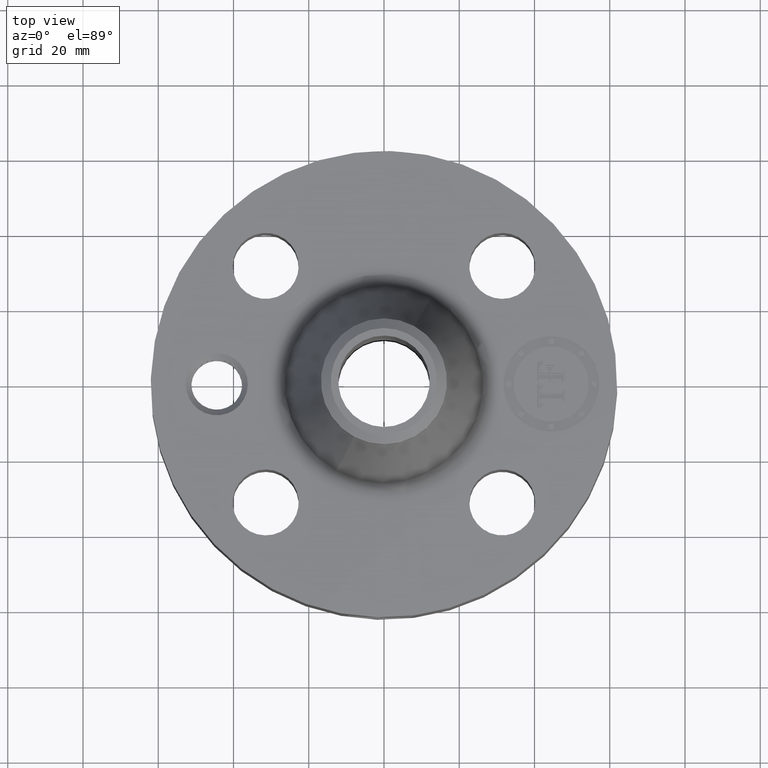
[diagram: clean part render]
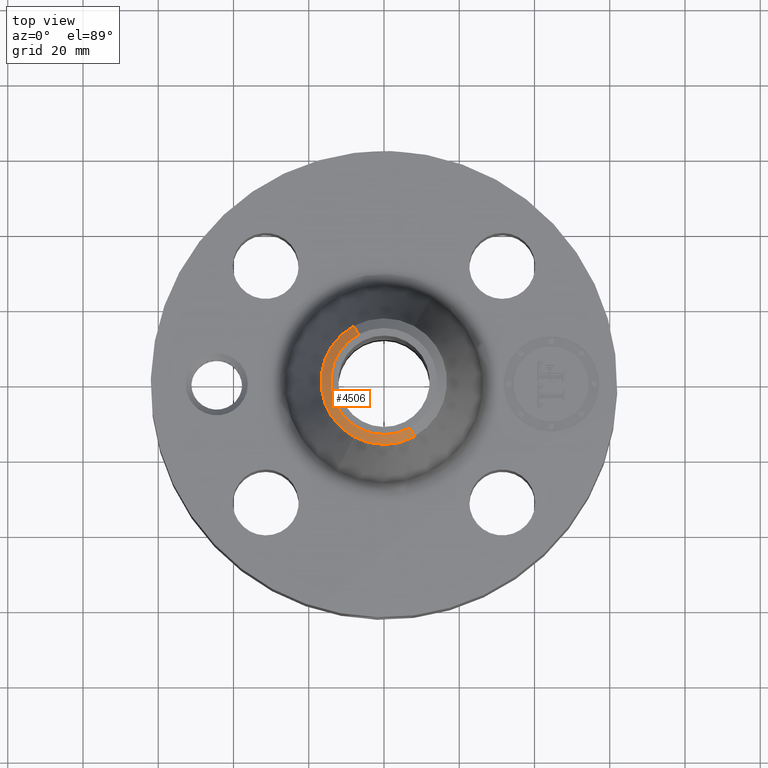
[diagram: same view with one face highlighted and labeled with its STEP entity id]
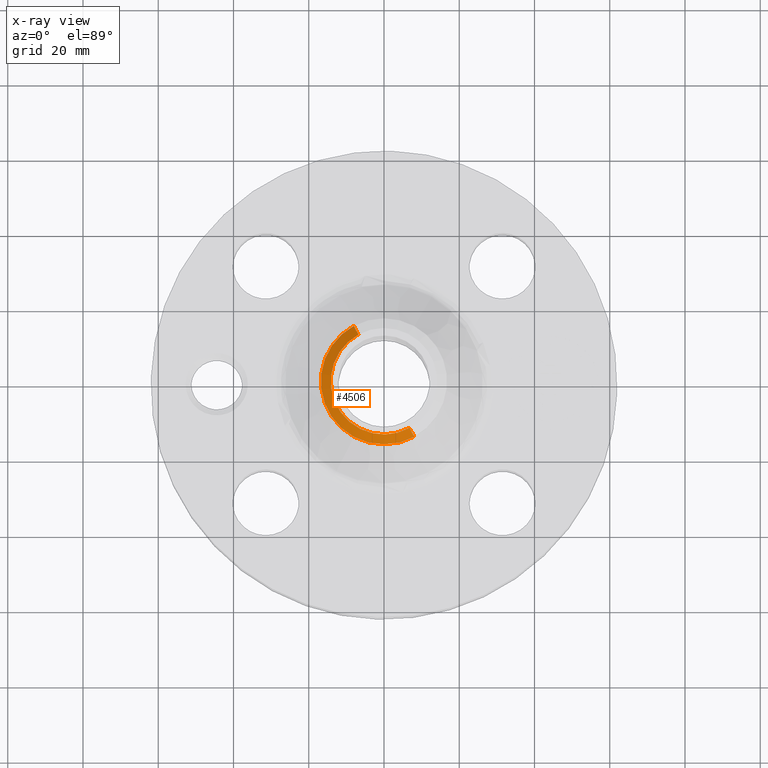
[diagram: x-ray of the same camera — body ghosted, the highlighted face saturated]
A machine part, top view. The second image highlights one B-rep face of the part: STEP entity #4506.
The next image is the same camera in x-ray: the body ghosted, the highlighted face saturated — about 0% of this face is hidden behind the body in this view.
In plain terms, the highlighted conical surface has half-angle 52.5 deg.
Its self-contained STEP definition (entity closure, byte-faithful):
#3216=AXIS2_PLACEMENT_3D('Circle Axis2P3D',#3214,#3215,$) ;
#3229=AXIS2_PLACEMENT_3D('Circle Axis2P3D',#3227,#3228,$) ;
#4077=AXIS2_PLACEMENT_3D('Circle Axis2P3D',#4075,#4076,$) ;
#4479=AXIS2_PLACEMENT_3D('Cone Axis2P3D',#4476,#4477,#4478) ;
#3197=CARTESIAN_POINT('Vertex',(-0.31642085548,-0.57920449085,3.23114959957)) ;
#3211=CARTESIAN_POINT('Vertex',(0.31642085548,-0.57920449085,3.23114959957)) ;
#3214=CARTESIAN_POINT('Axis2P3D Location',(0.,0.,3.23114959957)) ;
#3227=CARTESIAN_POINT('Axis2P3D Location',(0.,0.,3.23114959957)) ;
#3231=CARTESIAN_POINT('Vertex',(-0.31642085548,0.57920449085,3.23114959957)) ;
#4070=CARTESIAN_POINT('Vertex',(0.267155162633,-0.489024244991,3.31000000001)) ;
#4072=CARTESIAN_POINT('Vertex',(-0.267155162633,0.489024244991,3.31000000001)) ;
#4075=CARTESIAN_POINT('Axis2P3D Location',(0.,0.,3.31000000001)) ;
#4476=CARTESIAN_POINT('Axis2P3D Location',(0.,0.,3.31000000001)) ;
#4481=CARTESIAN_POINT('Line Origine',(-0.291788009056,0.534114367921,3.27057479979)) ;
#4486=CARTESIAN_POINT('Line Origine',(0.291788009056,-0.534114367921,3.27057479979)) ;
#3215=DIRECTION('Axis2P3D Direction',(0.,0.,-0.0393700787402)) ;
#3228=DIRECTION('Axis2P3D Direction',(0.,0.,-0.0393700787402)) ;
#4076=DIRECTION('Axis2P3D Direction',(0.,0.,-0.0393700787402)) ;
#4477=DIRECTION('Axis2P3D Direction',(-0.,-0.,-0.0393700787402)) ;
#4478=DIRECTION('Axis2P3D XDirection',(0.0188750212049,-0.0345504945626,0.)) ;
#4482=DIRECTION('Vector Direction',(-0.014974561121,0.02741075027,-0.023966985394)) ;
#4487=DIRECTION('Vector Direction',(0.014974561121,-0.02741075027,-0.023966985394)) ;
#4483=VECTOR('Line Direction',#4482,0.0393700787402) ;
#4488=VECTOR('Line Direction',#4487,0.0393700787402) ;
#4500=ORIENTED_EDGE('',*,*,#4490,.F.) ;
#4501=ORIENTED_EDGE('',*,*,#4079,.F.) ;
#4502=ORIENTED_EDGE('',*,*,#4485,.T.) ;
#4503=ORIENTED_EDGE('',*,*,#3233,.T.) ;
#4504=ORIENTED_EDGE('',*,*,#3218,.F.) ;
#4506=ADVANCED_FACE('PartBody',(#4505),#4480,.T.) ;
#3217=CIRCLE('generated circle',#3216,0.660000000003) ;
#3230=CIRCLE('generated circle',#3229,0.660000000003) ;
#4078=CIRCLE('generated circle',#4077,0.557240157482) ;
#4480=CONICAL_SURFACE('Cone',#4479,0.557240157482,0.916297857297) ;
#3218=EDGE_CURVE('',#3212,#3198,#3217,.T.) ;
#3233=EDGE_CURVE('',#3232,#3198,#3230,.F.) ;
#4079=EDGE_CURVE('',#4073,#4071,#4078,.F.) ;
#4485=EDGE_CURVE('',#4073,#3232,#4484,.T.) ;
#4490=EDGE_CURVE('',#4071,#3212,#4489,.T.) ;
#4499=EDGE_LOOP('',(#4500,#4501,#4502,#4503,#4504)) ;
#4505=FACE_OUTER_BOUND('',#4499,.T.) ;
#4484=LINE('Line',#4481,#4483) ;
#4489=LINE('Line',#4486,#4488) ;
#3198=VERTEX_POINT('',#3197) ;
#3212=VERTEX_POINT('',#3211) ;
#3232=VERTEX_POINT('',#3231) ;
#4071=VERTEX_POINT('',#4070) ;
#4073=VERTEX_POINT('',#4072) ;